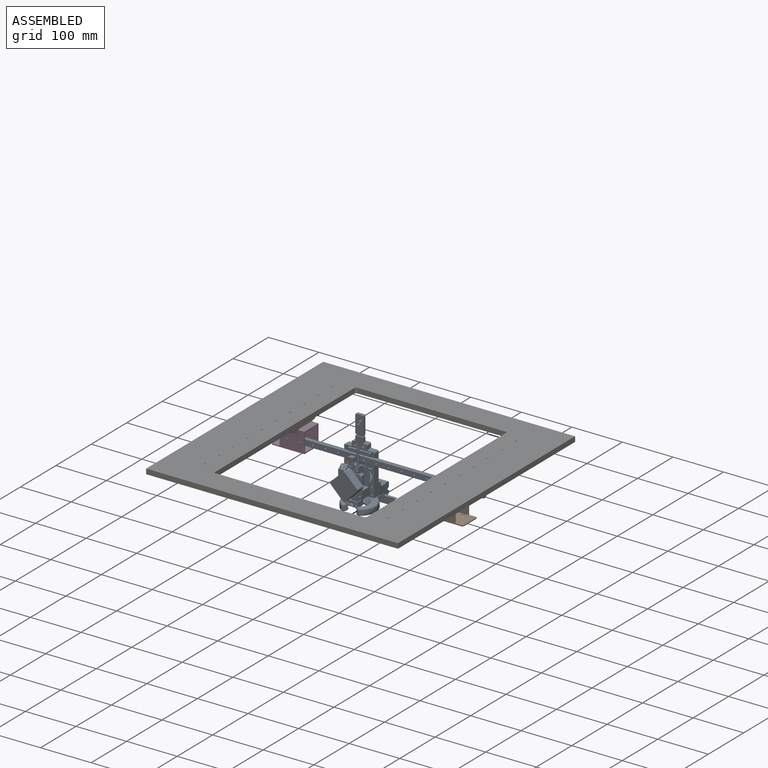
[diagram: assembled view]
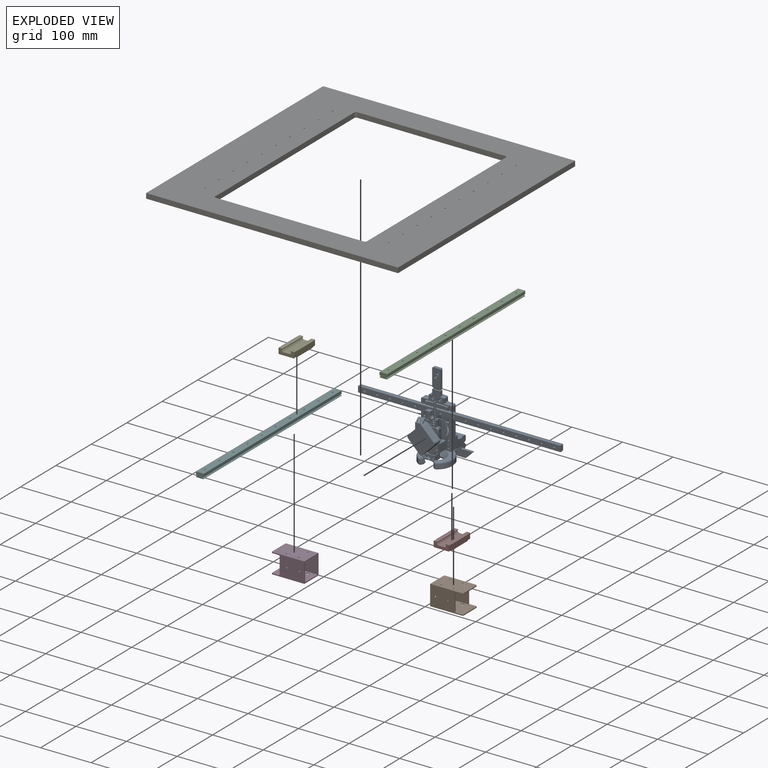
[diagram: exploded view]
GUIDED TOUR — MATED ASSEMBLY WITH SUBASSEMBLIES (Onshape document 4582f0631d4806b16300ab5d, AutoMate assembly 4582f0631d4806b16300ab5d_21cebfb99f55994230c3e05c_4cd21dc945d0d8148d6482c8_default)

This assembly has 25 component occurrences arranged in 8 top-level units: 7 individual components plus 1 subassembly (S0). The tour has two levels: first the top level, where each subassembly is treated as one rigid unit; then each subassembly is toured internally in its own section (nesting deeper than one subassembly level is flattened into its subassembly's section).

Components are labeled P0..P24 across the whole record; subassembly units are labeled S0..S0. A mate is a constraint between two units; its type names the relative motion it leaves free:
  FASTENED — locks the two components together rigidly (no relative motion),
  REVOLUTE — leaves rotation about the listed axis free (a hinge),
  SLIDER — leaves translation along the listed axis free.
Axis/direction vectors are unit vectors and 'through' points are millimeter coordinates, both in the assembly's world frame.

TOP-LEVEL MATES (between units; each subassembly's internal mates are listed in its own section)
  1. SLIDER "Slider 1": P17 <-> P15, axis (0.000, -1.000, 0.000) through (-225.67, -213.87, -5.04) mm
  2. SLIDER "Slider 2": P3 <-> P22, axis (0.000, -1.000, 0.000) through (137.33, -213.87, -5.04) mm
  3. FASTENED "Fastened 3": P15 <-> P4, direction (0.000, 0.000, -1.000) through (-238.17, 47.69, -11.54) mm
  4. FASTENED "Fastened 2": P20 <-> P3, direction (0.000, 0.000, -1.000) through (137.33, -198.87, 4.96) mm
  5. FASTENED "Fastened 5": P4 <-> S0, direction (0.000, 1.000, 0.000) through (-231.67, 42.19, -31.54) mm
  6. FASTENED "Fastened 4": P22 <-> P2, direction (0.000, 0.000, -1.000) through (149.83, -32.88, -11.54) mm
  7. FASTENED "Fastened 1": P20 <-> P17, direction (0.000, 0.000, -1.000) through (-225.67, -198.87, 4.96) mm

TOP-LEVEL ASSEMBLY ORDER
  1. P17 — the base component [order verified]
  2. P3 [order verified]
  3. S0 [order verified]
  4. P15 [order verified]
  5. P22 [order verified]
  6. P20 [order verified]
  7. P4 [order verified]
  8. P2 [order verified]
Order-tag legend:
  [order verified] — this step's position reverses a verified removal order: the component was checked to insert without passing through the ones already placed.

Of the 25 component occurrences, 1 carries the full construction recipe — the FeatureScript program that regenerates the part's solid from scratch; the rest are supplied as boundary geometry only. Each toured unit is shown spotlighted twice — assembled, then exploded with a leader line back to its socket (green = recipe-attached component, orange = geometry-only, blue = subassembly unit; the rest desaturated gray).
NOTE — this tour is split across 2 documents so each fits a 32k-token context. This is document 1: the component sections continue in the remaining 1 document, each repeating the header above.
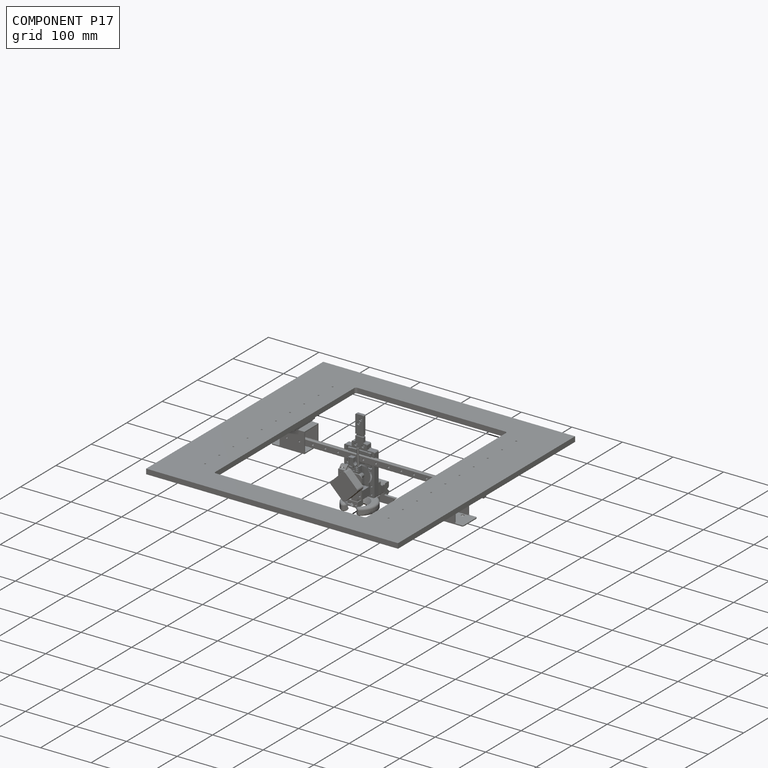
[diagram: component P17 — assembled]
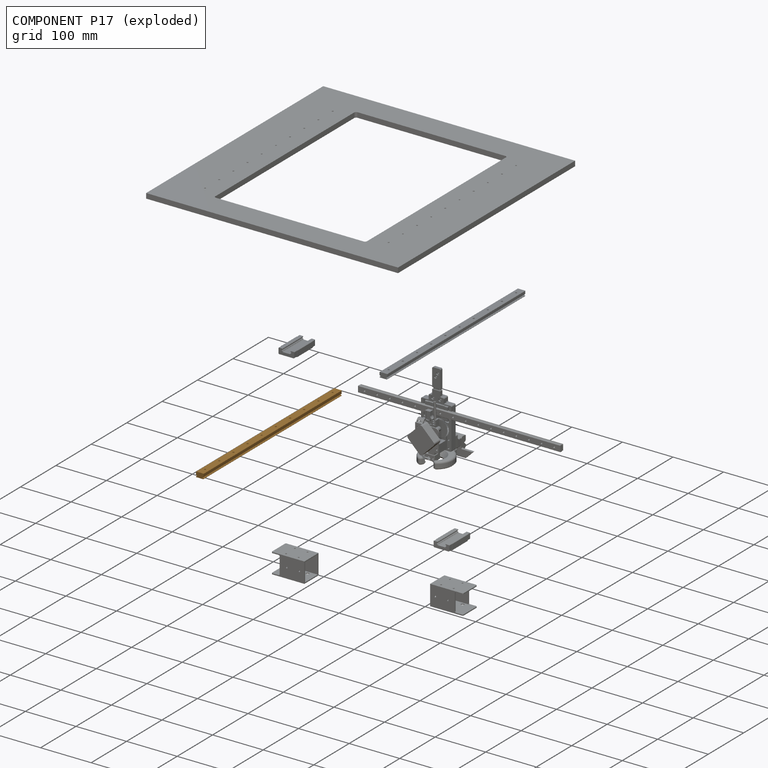
[diagram: component P17 — exploded]
COMPONENT P17 — geometry summary (no construction recipe available for this part):
  bounding box: 390.0 x 15.0 x 10.0 mm
  B-rep topology: 1 solid, 52 faces, 260 edges
  volume: 53658 mm^3 (92% of its bounding box)
  symmetry: 2-fold rotationally symmetric about the z axis; mirror-symmetric across its x mid-plane, y mid-plane
Held by: SLIDER mate "Slider 1" to P15; FASTENED mate "Fastened 1" to P20.
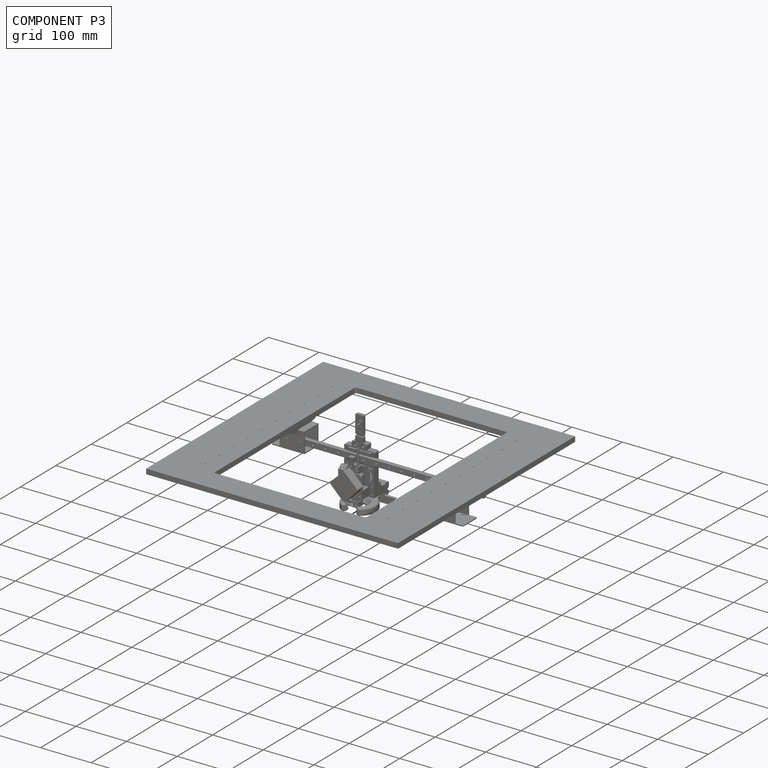
[diagram: component P3 — assembled]
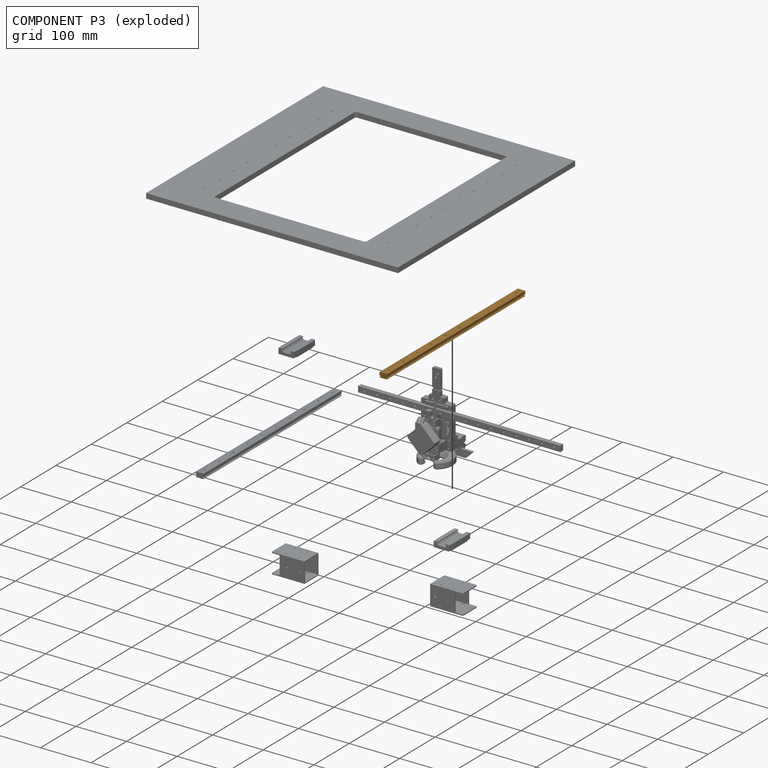
[diagram: component P3 — exploded]
COMPONENT P3 — geometry summary (no construction recipe available for this part):
  bounding box: 390.0 x 15.0 x 10.0 mm
  B-rep topology: 1 solid, 52 faces, 260 edges
  volume: 53658 mm^3 (92% of its bounding box)
  symmetry: 2-fold rotationally symmetric about the z axis; mirror-symmetric across its x mid-plane, y mid-plane
Held by: SLIDER mate "Slider 2" to P22; FASTENED mate "Fastened 2" to P20.
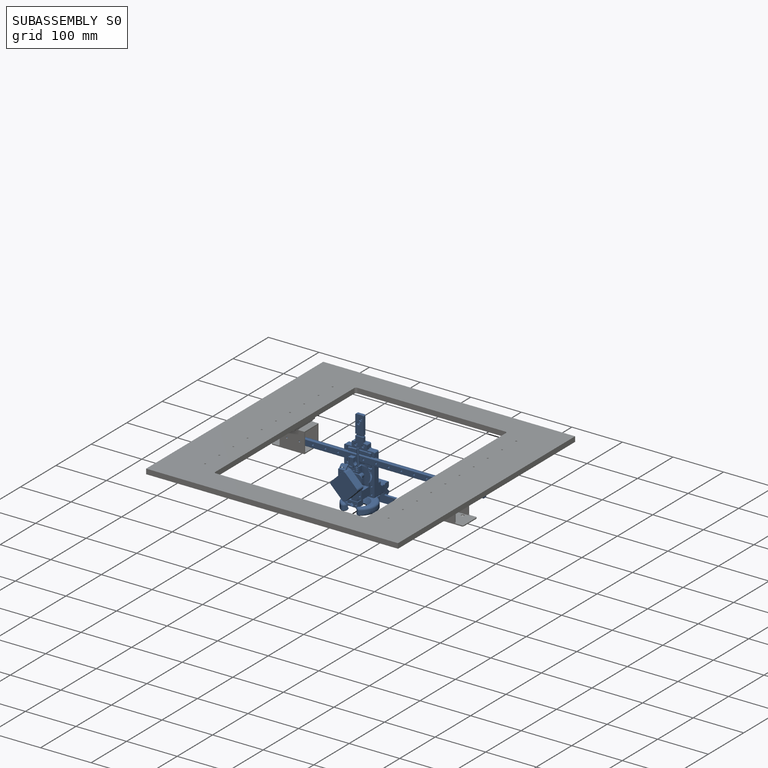
[diagram: subassembly S0 — assembled]
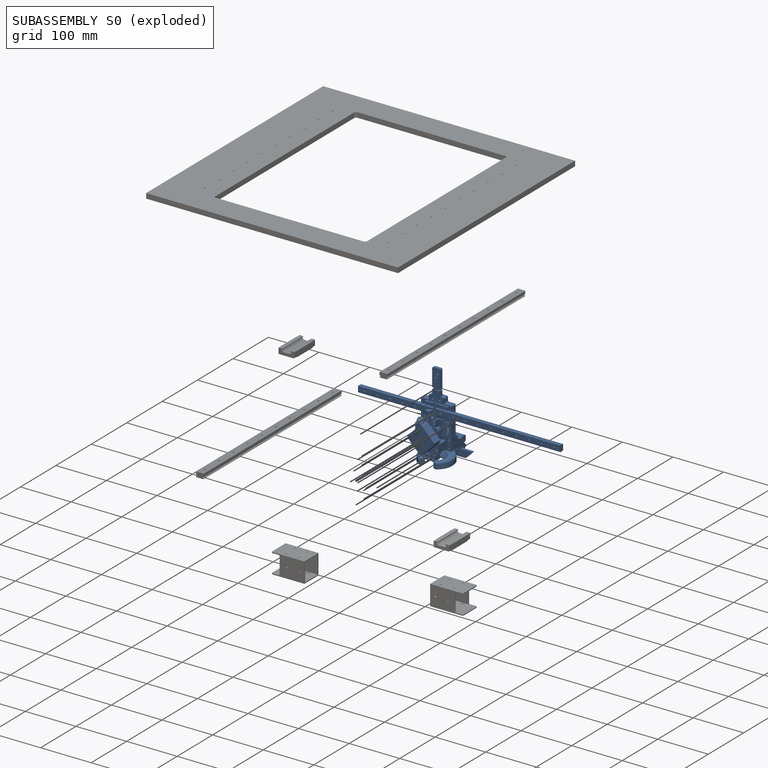
[diagram: subassembly S0 — exploded]
SUBASSEMBLY S0 — 18 components (P0, P1, P5, P6, P7, P8, P9, P10, P11, P12, P13, P14, P16, P18, P19, P21, P23, P24), of which 1 recipe-attached; toured below.
Held by: FASTENED mate "Fastened 5" to P4.
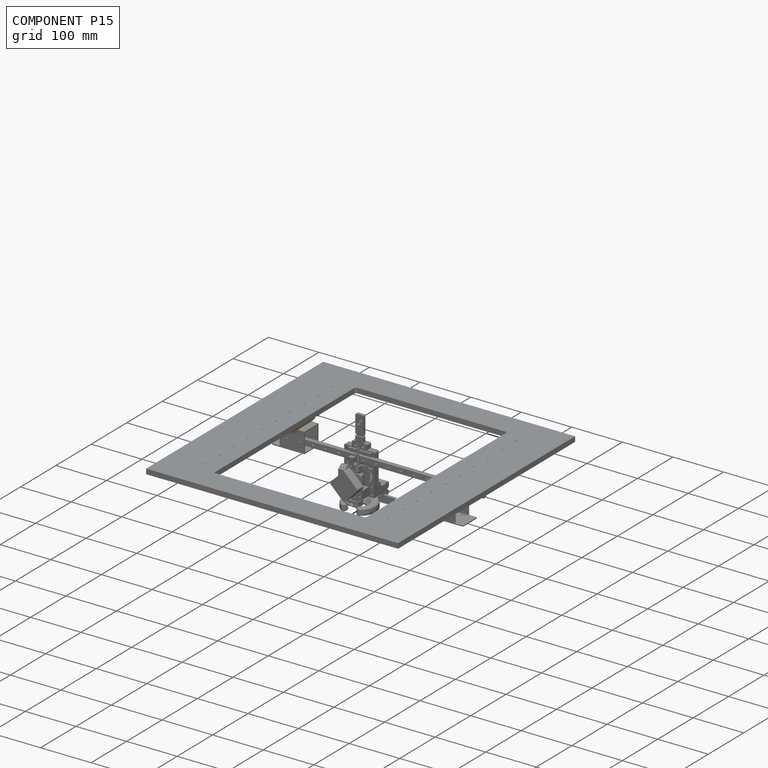
[diagram: component P15 — assembled]
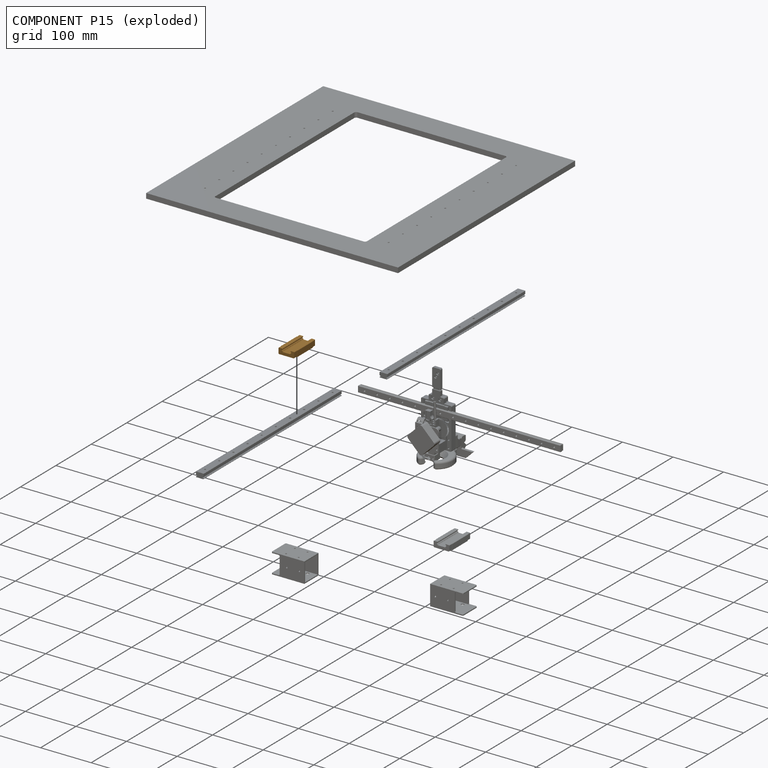
[diagram: component P15 — exploded]
COMPONENT P15 — geometry summary (no construction recipe available for this part):
  bounding box: 58.8 x 32.0 x 12.0 mm
  B-rep topology: 1 solid, 50 faces, 272 edges
  volume: 15748 mm^3 (70% of its bounding box)
  symmetry: 2-fold rotationally symmetric about the z axis; mirror-symmetric across its x mid-plane, y mid-plane
Held by: SLIDER mate "Slider 1" to P17; FASTENED mate "Fastened 3" to P4.
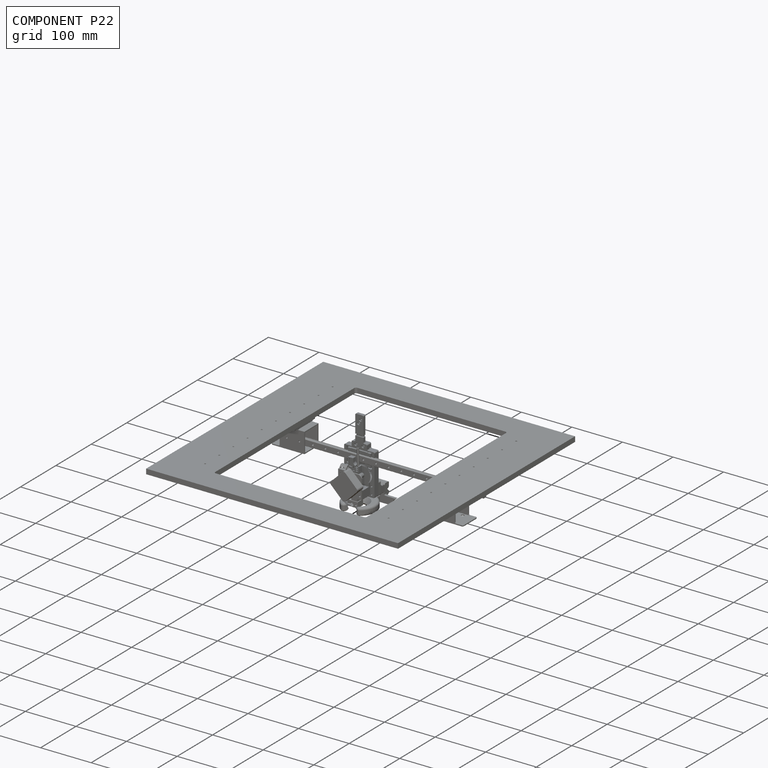
[diagram: component P22 — assembled]
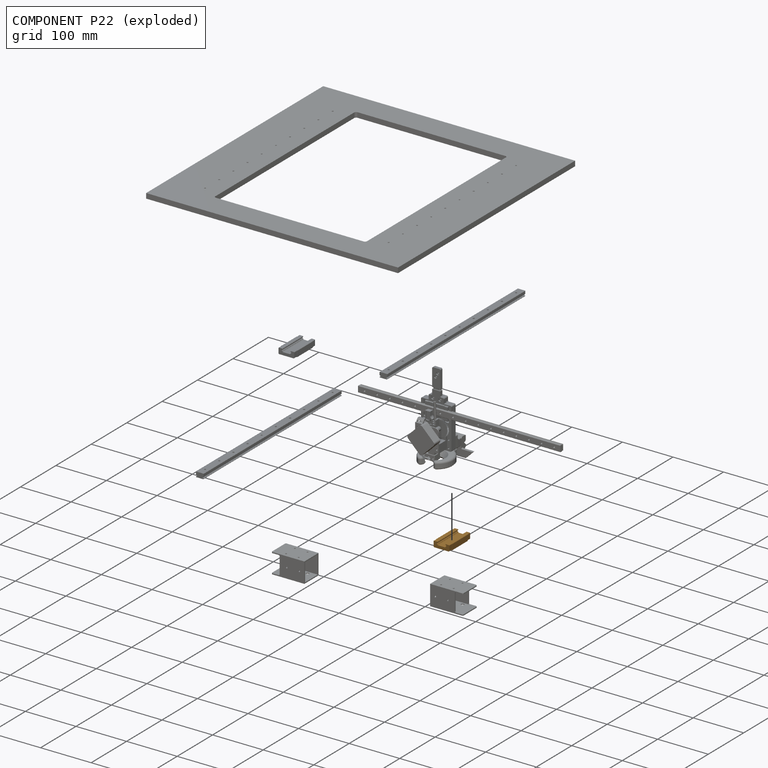
[diagram: component P22 — exploded]
COMPONENT P22 — geometry summary (no construction recipe available for this part):
  bounding box: 58.8 x 32.0 x 12.0 mm
  B-rep topology: 1 solid, 50 faces, 272 edges
  volume: 15748 mm^3 (70% of its bounding box)
  symmetry: 2-fold rotationally symmetric about the z axis; mirror-symmetric across its x mid-plane, y mid-plane
Held by: SLIDER mate "Slider 2" to P3; FASTENED mate "Fastened 4" to P2.
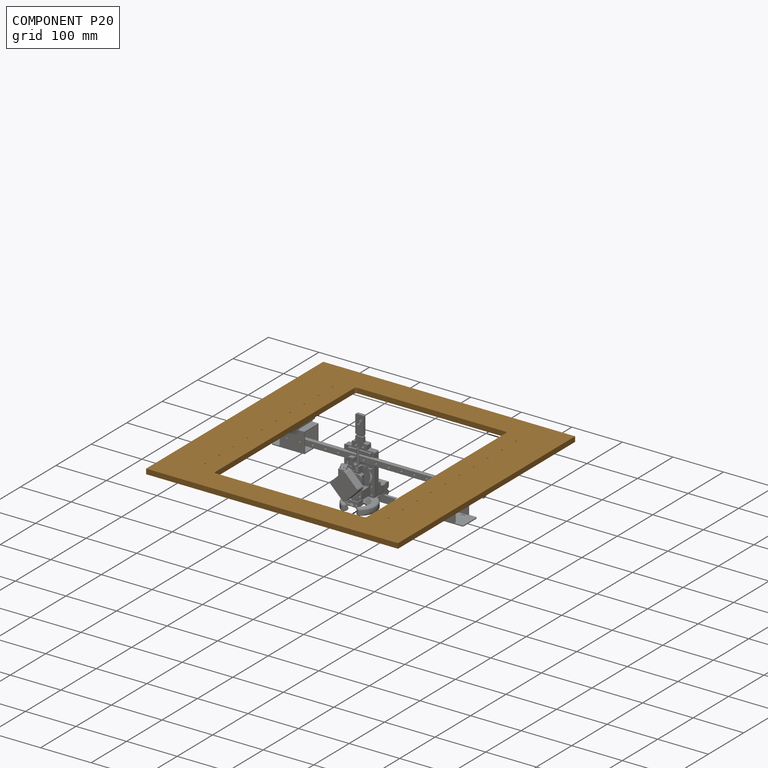
[diagram: component P20 — assembled]
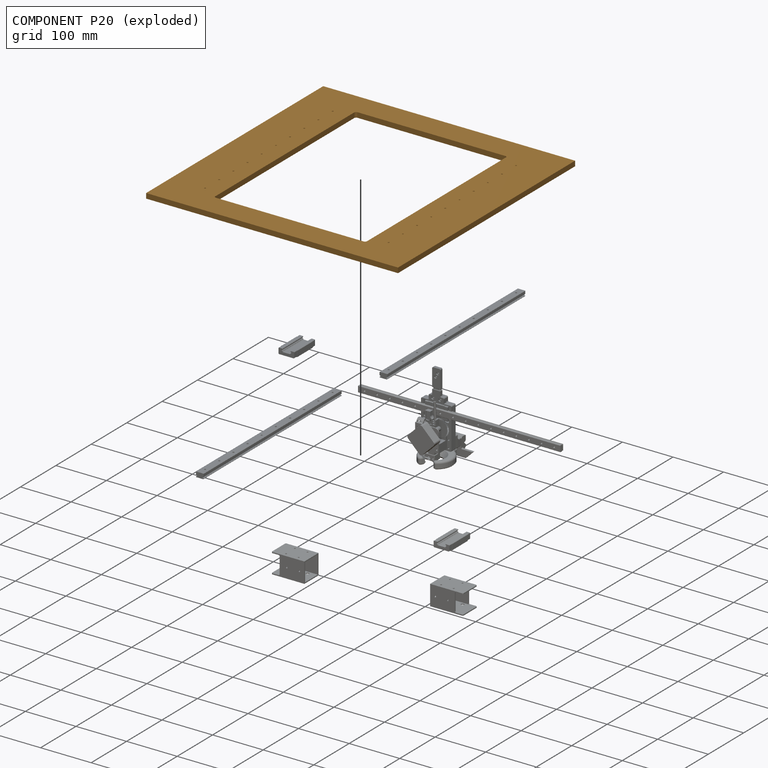
[diagram: component P20 — exploded]
COMPONENT P20 — geometry summary (no construction recipe available for this part):
  bounding box: 500.0 x 498.0 x 10.0 mm
  B-rep topology: 1 solid, 34 faces, 232 edges
  volume: 1288724 mm^3 (52% of its bounding box)
  symmetry: 2-fold rotationally symmetric about the x axis; 2-fold rotationally symmetric about the y axis; 2-fold rotationally symmetric about the z axis; mirror-symmetric across its x mid-plane, y mid-plane, z mid-plane
Held by: FASTENED mate "Fastened 2" to P3; FASTENED mate "Fastened 1" to P17.
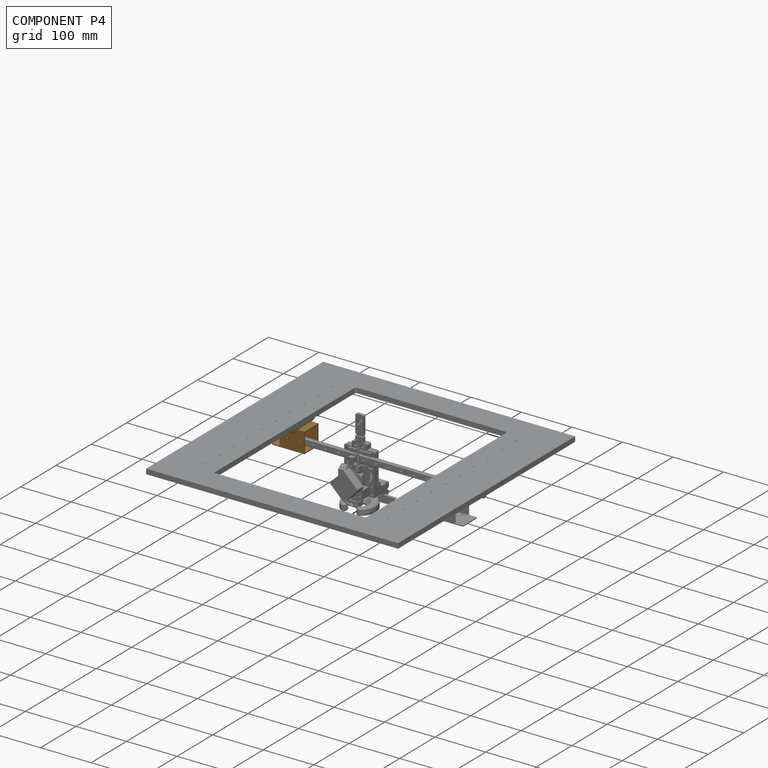
[diagram: component P4 — assembled]
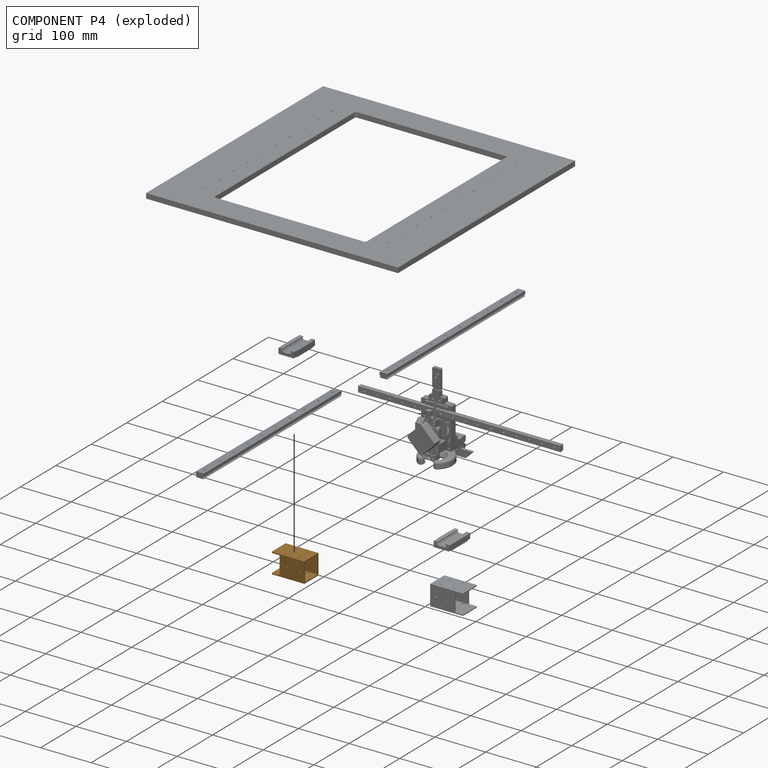
[diagram: component P4 — exploded]
COMPONENT P4 — geometry summary (no construction recipe available for this part):
  bounding box: 65.0 x 40.0 x 40.0 mm
  B-rep topology: 1 solid, 32 faces, 190 edges
  volume: 17088 mm^3 (16% of its bounding box)
Held by: FASTENED mate "Fastened 3" to P15; FASTENED mate "Fastened 5" to P0.
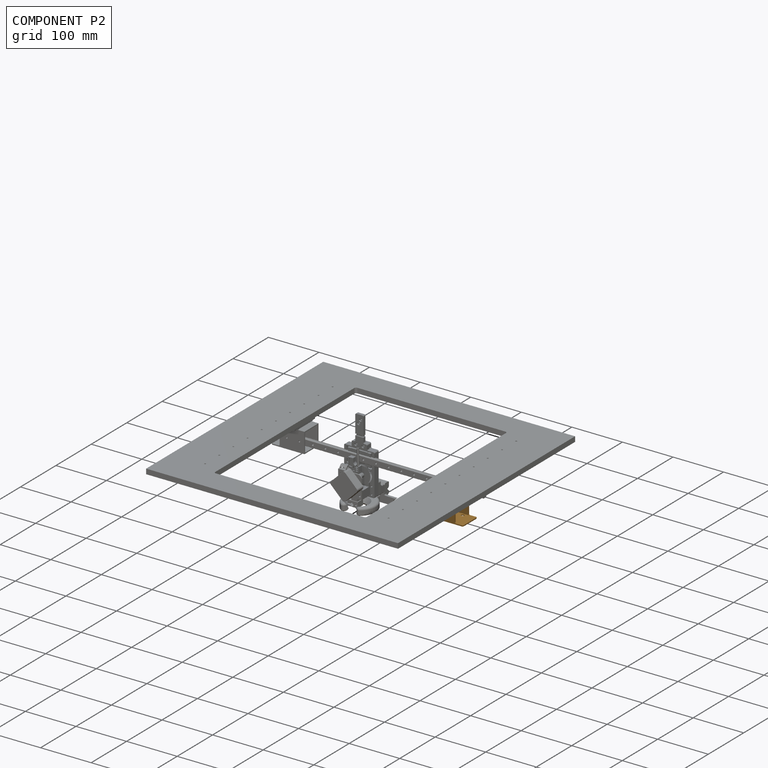
[diagram: component P2 — assembled]
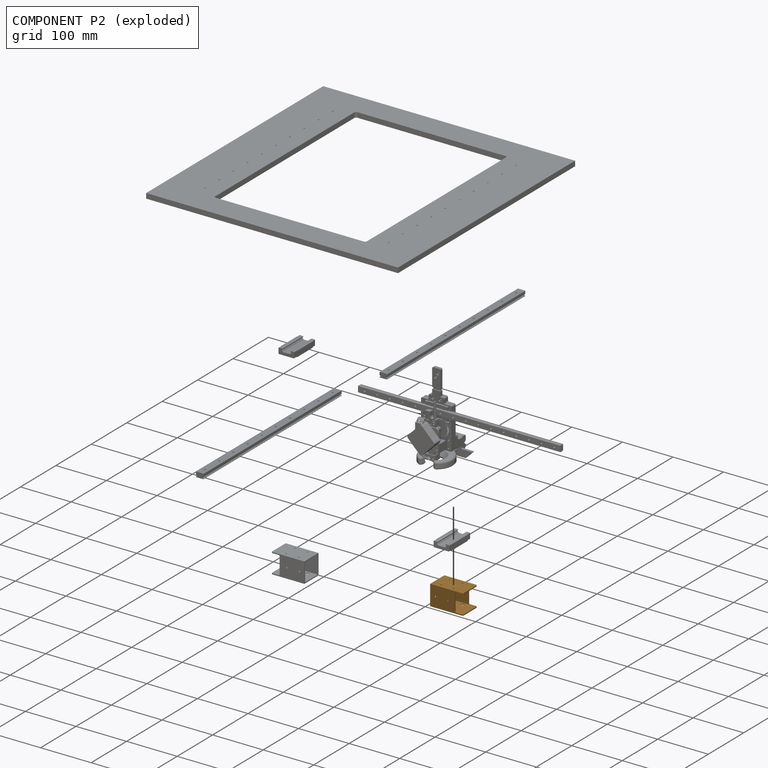
[diagram: component P2 — exploded]
COMPONENT P2 — geometry summary (no construction recipe available for this part):
  bounding box: 65.0 x 40.0 x 40.0 mm
  B-rep topology: 1 solid, 32 faces, 190 edges
  volume: 17088 mm^3 (16% of its bounding box)
Held by: FASTENED mate "Fastened 4" to P22.
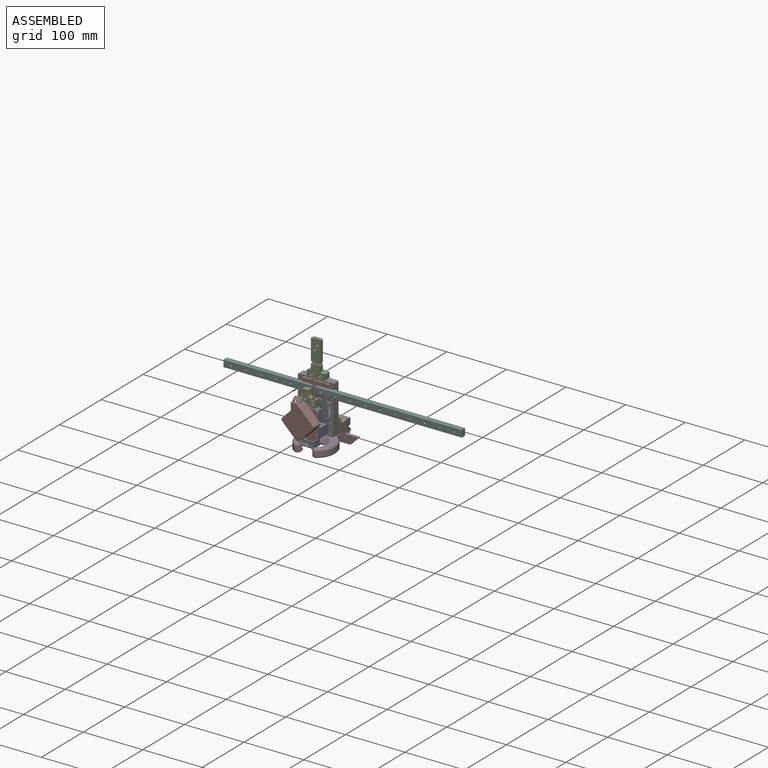
[diagram: subassembly S0 — assembled view]
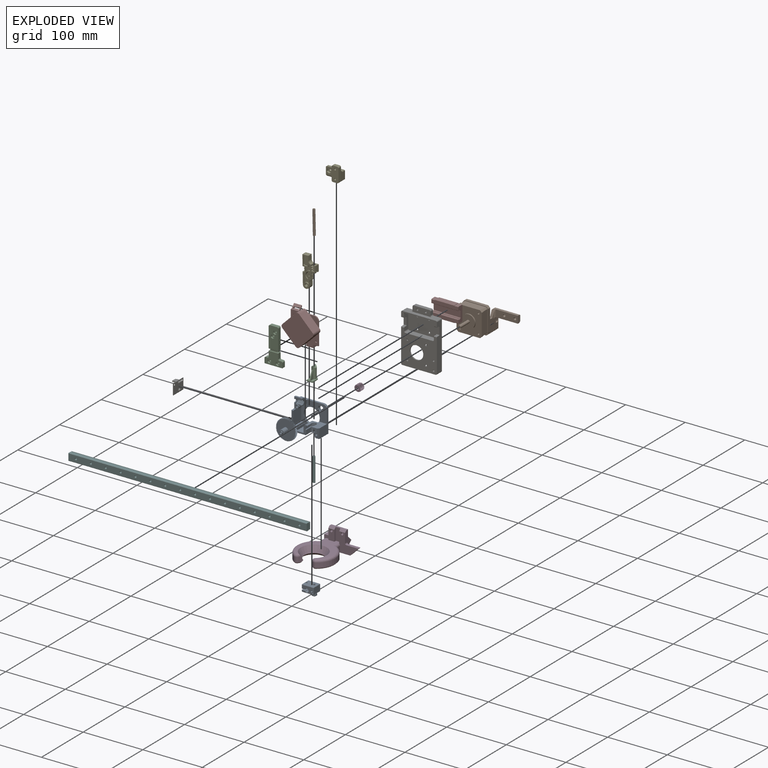
[diagram: subassembly S0 — exploded view]
SUBASSEMBLY S0 TOUR — 18 components, shown here in isolation at its own camera.

INTERNAL MATES
  1. FASTENED "Fastened 7": P11 <-> P10, direction (0.000, -1.000, 0.000) through (-114.31, 22.94, -90.50) mm
  2. FASTENED "Fastened 3": P11 <-> P14, direction (0.000, 1.000, 0.000) through (-95.70, 45.19, -71.54) mm
  3. FASTENED "Fastened 15": P24 <-> P9, direction (-1.000, 0.000, 0.000) through (-105.70, 68.58, -101.04) mm
  4. FASTENED "Fastened 2": P11 <-> P23, direction (0.000, -1.000, 0.000) through (-80.18, 41.09, -56.20) mm
  5. FASTENED "Fastened 1": P21 <-> P19, direction (0.000, 1.000, 0.000) through (-101.70, 55.19, -21.54) mm
  6. FASTENED "Fastened 12": P19 <-> P16, direction (0.000, 1.000, 0.000) through (-67.45, 57.19, -76.54) mm
  7. REVOLUTE "Revolute 1": P10 <-> P0, axis (0.000, 0.000, -1.000) through (-84.66, 31.94, -97.65) mm
  8. FASTENED "Fastened 4": P14 <-> P7, direction (0.000, -1.000, 0.000) through (-95.70, 36.19, -71.54) mm
  9. FASTENED "Fastened 11": P19 <-> P5, direction (0.000, -1.000, 0.000) through (-98.70, 51.19, -9.54) mm
  10. FASTENED "Fastened 9": P1 <-> P19, direction (0.000, -1.000, 0.000) through (-95.70, 47.19, -71.54) mm
  11. FASTENED "Fastened 5": P12 <-> P7, direction (0.018, 0.000, -1.000) through (-84.72, 32.17, -47.74) mm
  12. SLIDER "Slider 1": P8 <-> P21, axis (1.000, 0.000, 0.000) through (155.83, 50.19, -31.54) mm
  13. FASTENED "Fastened 6": P13 <-> P11, direction (0.000, 0.000, 1.000) through (-84.61, 31.29, -78.03) mm
  14. FASTENED "Fastened 13": P16 <-> P6, direction (0.000, 1.000, 0.000) through (-85.20, 73.69, -87.04) mm
  15. FASTENED "Fastened 14": P6 <-> P24, direction (0.000, 1.000, 0.000) through (-85.20, 80.69, -87.04) mm
  16. FASTENED "Fastened 10": P1 <-> P11, direction (0.000, -1.000, 0.000) through (-95.70, 45.19, -71.54) mm
  17. FASTENED "Fastened 8": P13 <-> P18, direction (0.000, 0.000, -1.000) through (-84.71, 31.29, -63.33) mm
  18. FASTENED "Fastened 12": P19 <-> P16, direction (0.000, 1.000, 0.000) through (-67.45, 57.19, -76.54) mm
  19. FASTENED "Fastened 14": P6 <-> P24, direction (0.000, 1.000, 0.000) through (-85.20, 80.69, -87.04) mm
  20. FASTENED "Fastened 15": P24 <-> P9, direction (-1.000, 0.000, 0.000) through (-105.70, 68.58, -101.04) mm
  21. FASTENED "Fastened 6": P13 <-> P11, direction (0.000, 0.000, 1.000) through (-84.61, 31.29, -78.03) mm
  22. FASTENED "Fastened 8": P13 <-> P18, direction (0.000, 0.000, -1.000) through (-84.71, 31.29, -63.33) mm
  23. FASTENED "Fastened 7": P11 <-> P10, direction (0.000, -1.000, 0.000) through (-114.31, 22.94, -90.50) mm
  24. FASTENED "Fastened 3": P11 <-> P14, direction (0.000, 1.000, 0.000) through (-95.70, 45.19, -71.54) mm
  25. FASTENED "Fastened 10": P1 <-> P11, direction (0.000, -1.000, 0.000) through (-95.70, 45.19, -71.54) mm
  26. FASTENED "Fastened 4": P14 <-> P7, direction (0.000, -1.000, 0.000) through (-95.70, 36.19, -71.54) mm
  27. FASTENED "Fastened 13": P16 <-> P6, direction (0.000, 1.000, 0.000) through (-85.20, 73.69, -87.04) mm
  28. FASTENED "Fastened 1": P21 <-> P19, direction (0.000, 1.000, 0.000) through (-101.70, 55.19, -21.54) mm
  29. FASTENED "Fastened 5": P12 <-> P7, direction (0.018, 0.000, -1.000) through (-84.72, 32.17, -47.74) mm
  30. SLIDER "Slider 1": P8 <-> P21, axis (1.000, 0.000, 0.000) through (155.83, 50.19, -31.54) mm
  31. FASTENED "Fastened 11": P19 <-> P5, direction (0.000, -1.000, 0.000) through (-98.70, 51.19, -9.54) mm
  32. FASTENED "Fastened 2": P11 <-> P23, direction (0.000, -1.000, 0.000) through (-80.18, 41.09, -56.20) mm
  33. FASTENED "Fastened 9": P1 <-> P19, direction (0.000, -1.000, 0.000) through (-95.70, 47.19, -71.54) mm
  34. REVOLUTE "Revolute 1": P10 <-> P0, axis (0.000, 0.000, -1.000) through (-84.66, 31.94, -97.65) mm

ASSEMBLY ORDER (within the subassembly)
  1. P11 — the base component [order heuristic]
  2. P1 — core [order heuristic]
  3. P13 [order verified]
  4. P14 — core [order heuristic]
  5. P23 — core [order heuristic]
  6. P10 — core [order heuristic]
  7. P19 — core [order heuristic]
  8. P21 — core [order heuristic]
  9. P18 — core [order heuristic]
  10. P8 [order verified]
  11. P7 [order verified]
  12. P0 [order verified]
  13. P12 [order verified]
  14. P6 [order verified]
  15. P24 [order verified]
  16. P9 [order verified]
  17. P16 [order verified]
  18. P5 [order verified]
(P12, P13 verified with a relaxed clearance tolerance: the source model stores slight part interference there.)
Order-tag legend:
  [order verified] — this step's position reverses a verified removal order: the component was checked to insert without passing through the ones already placed.
  [order heuristic] — the first 8 components form the assembly's core: parts whose collision-free extraction could not be verified, listed in mate-graph order.
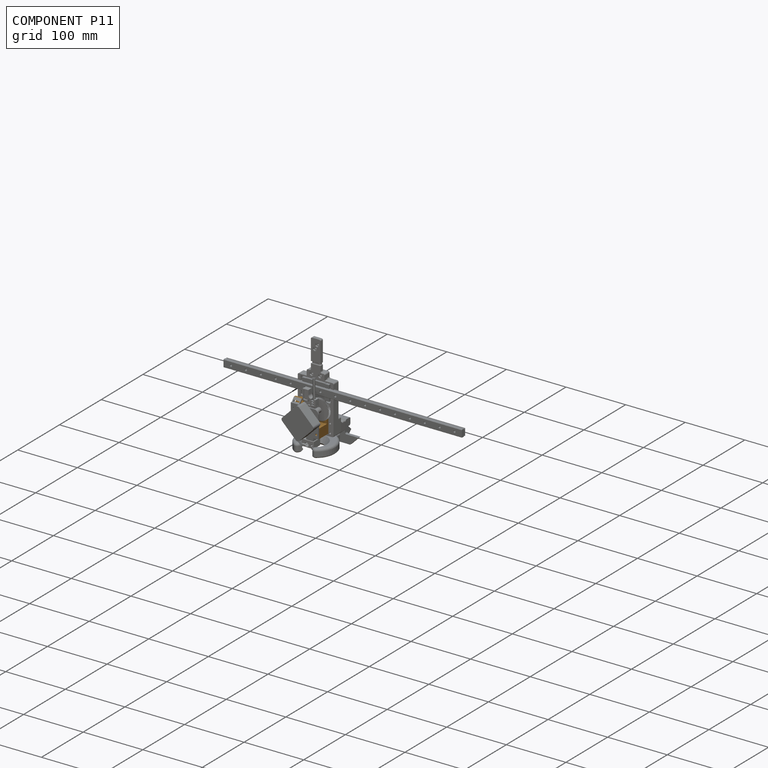
[diagram: component P11 — assembled]
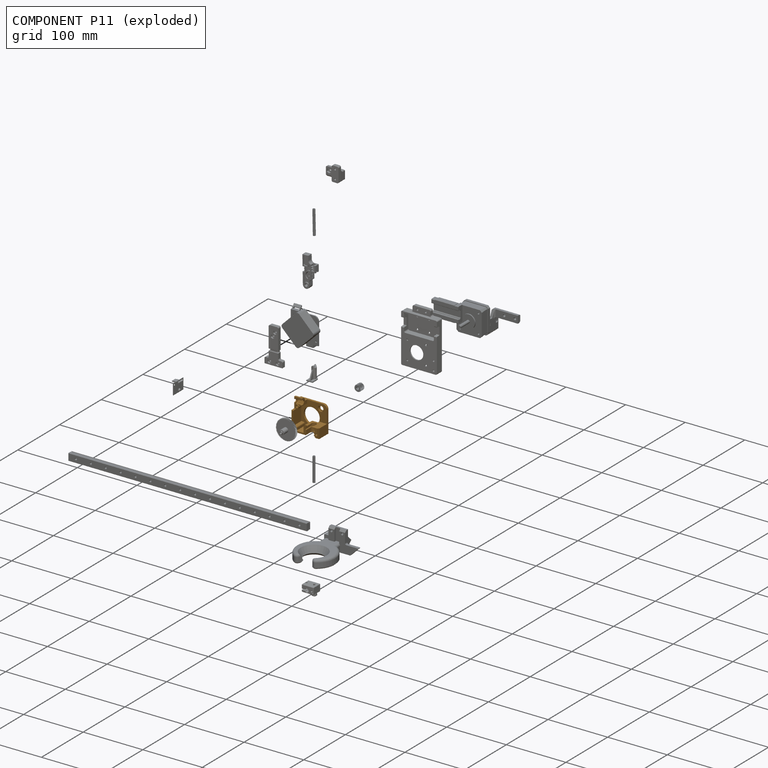
[diagram: component P11 — exploded]
COMPONENT P11 — geometry summary (no construction recipe available for this part):
  bounding box: 50.1 x 46.3 x 23.8 mm
  B-rep topology: 1 solid, 91 faces, 533 edges
  volume: 13798 mm^3 (25% of its bounding box)
Held by: FASTENED mate "Fastened 7" to P10; FASTENED mate "Fastened 3" to P14; FASTENED mate "Fastened 2" to P23; FASTENED mate "Fastened 6" to P13; FASTENED mate "Fastened 10" to P1; FASTENED mate "Fastened 6" to P13; FASTENED mate "Fastened 7" to P10; FASTENED mate "Fastened 3" to P14; FASTENED mate "Fastened 10" to P1; FASTENED mate "Fastened 2" to P23.
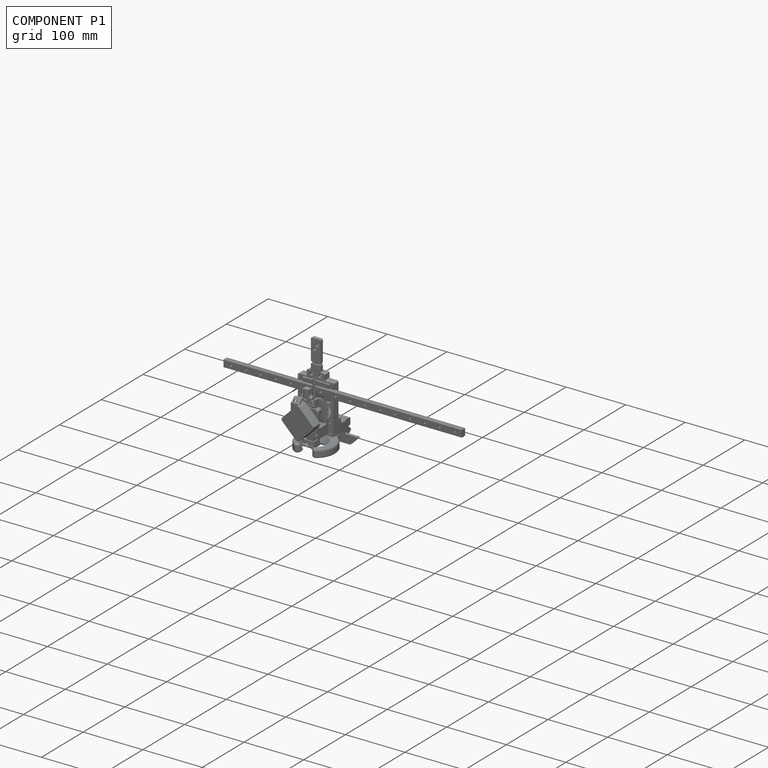
[diagram: component P1 — assembled]
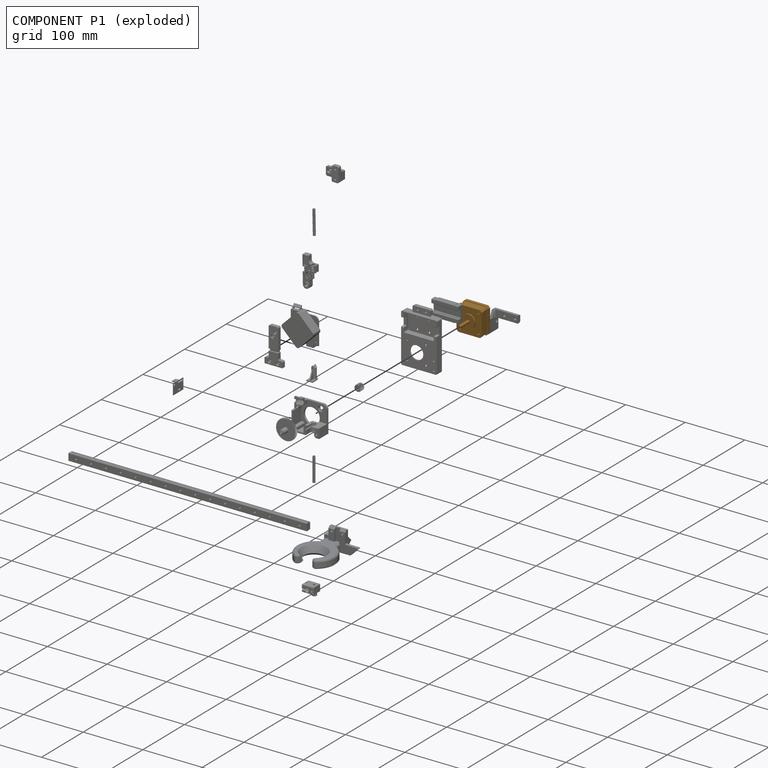
[diagram: component P1 — exploded]
COMPONENT P1 — geometry summary (no construction recipe available for this part):
  bounding box: 44.0 x 42.3 x 42.3 mm
  B-rep topology: 1 solid, 36 faces, 182 edges
  volume: 34464 mm^3 (44% of its bounding box)
  symmetry: 4-fold rotationally symmetric about the y axis; mirror-symmetric across its x mid-plane, z mid-plane
Held by: FASTENED mate "Fastened 9" to P19; FASTENED mate "Fastened 10" to P11; FASTENED mate "Fastened 10" to P11; FASTENED mate "Fastened 9" to P19.
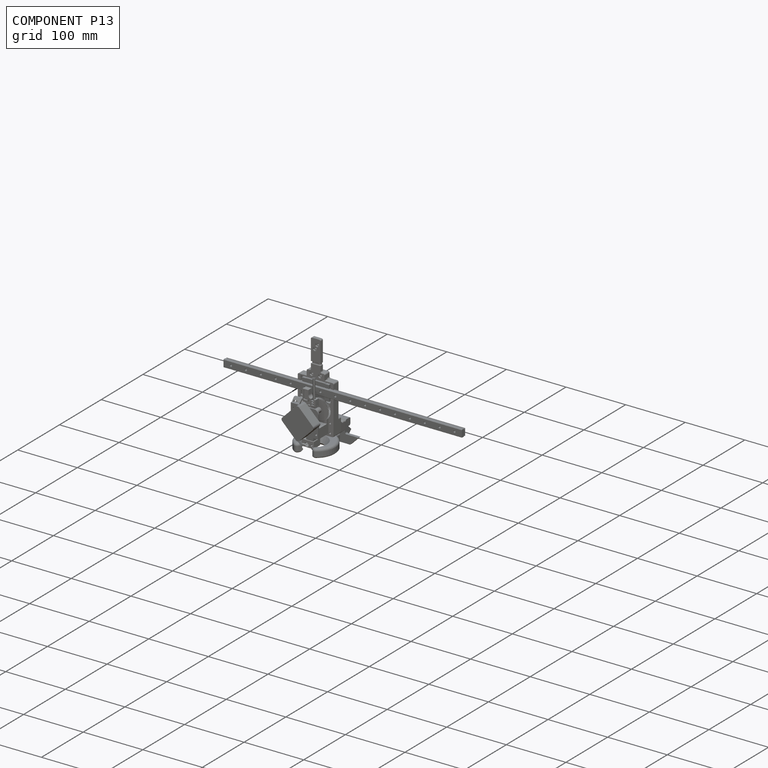
[diagram: component P13 — assembled]
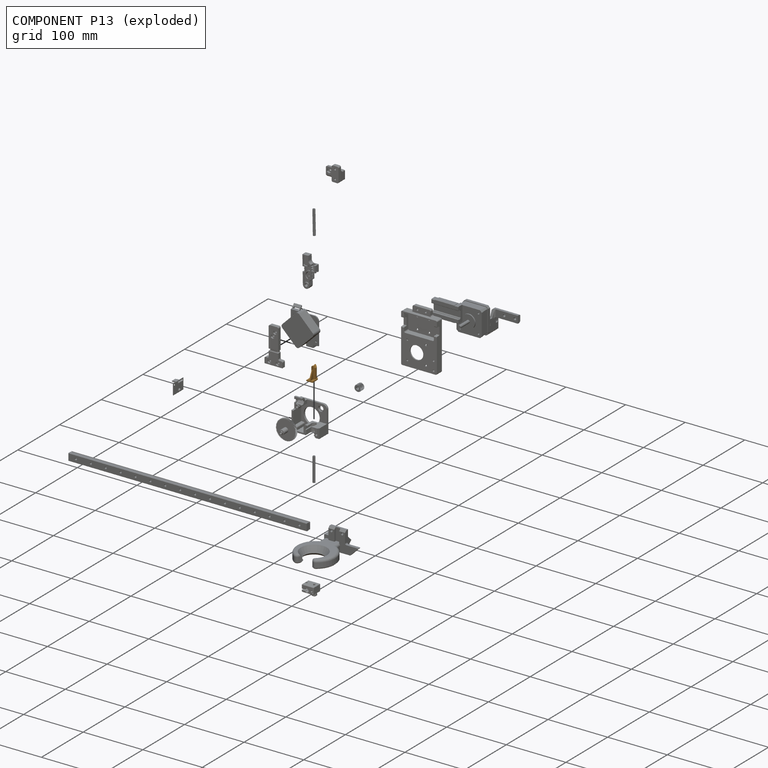
[diagram: component P13 — exploded]
COMPONENT P13 — geometry summary (no construction recipe available for this part):
  bounding box: 21.9 x 16.1 x 10.6 mm
  B-rep topology: 1 solid, 22 faces, 114 edges
  volume: 843 mm^3 (23% of its bounding box)
Held by: FASTENED mate "Fastened 6" to P11; FASTENED mate "Fastened 8" to P18; FASTENED mate "Fastened 6" to P11; FASTENED mate "Fastened 8" to P18.
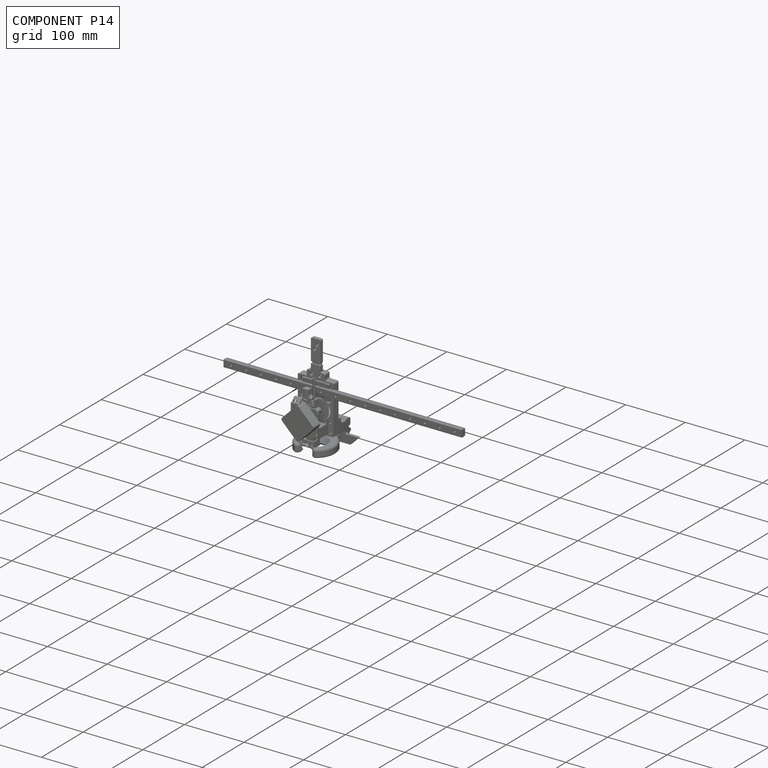
[diagram: component P14 — assembled]
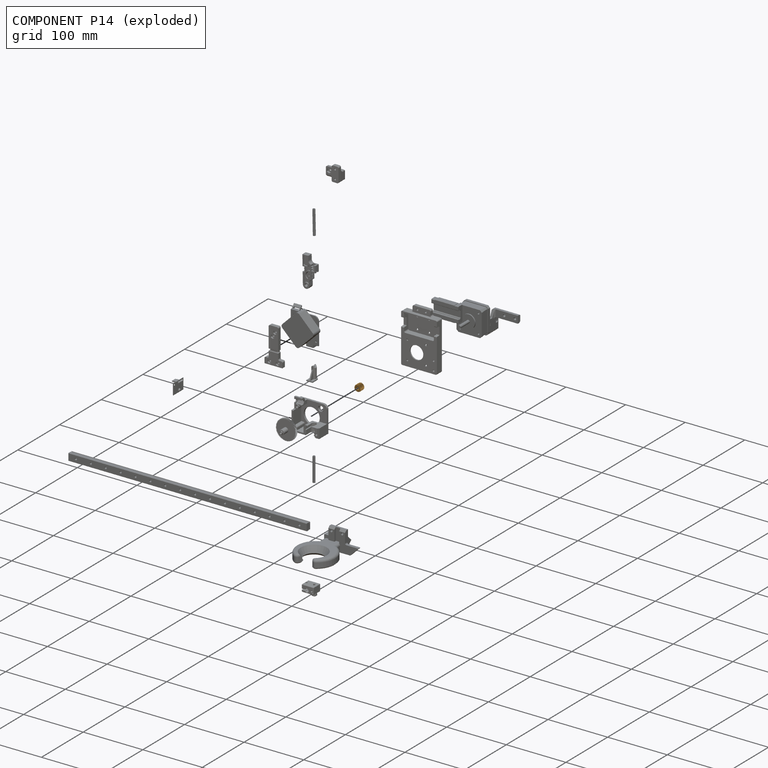
[diagram: component P14 — exploded]
COMPONENT P14 — geometry summary (no construction recipe available for this part):
  bounding box: 11.1 x 11.0 x 9.0 mm
  B-rep topology: 1 solid, 47 faces, 270 edges
  volume: 523 mm^3 (48% of its bounding box)
  symmetry: 2-fold rotationally symmetric about the y axis; mirror-symmetric across its y mid-plane
Held by: FASTENED mate "Fastened 3" to P11; FASTENED mate "Fastened 4" to P7; FASTENED mate "Fastened 3" to P11; FASTENED mate "Fastened 4" to P7.
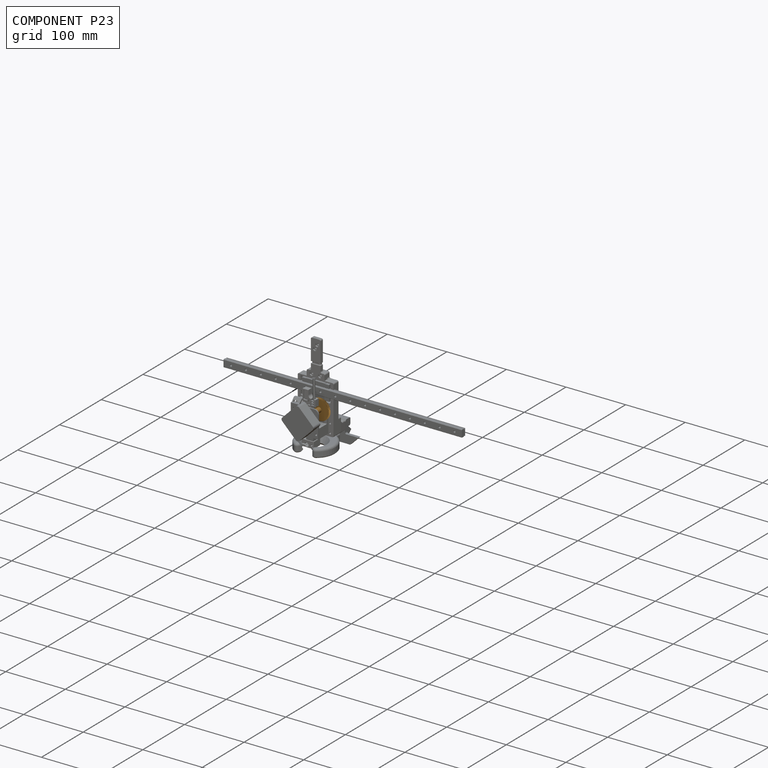
[diagram: component P23 — assembled]
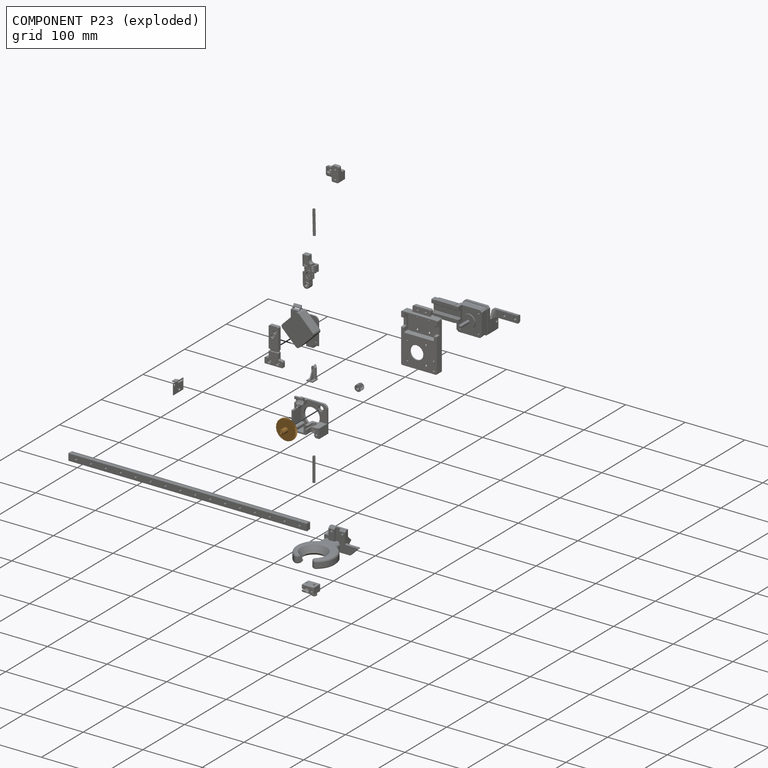
[diagram: component P23 — exploded]
COMPONENT P23 — geometry summary (no construction recipe available for this part):
  bounding box: 34.0 x 34.0 x 20.2 mm
  B-rep topology: 1 solid, 155 faces, 860 edges
  volume: 3832 mm^3 (16% of its bounding box)
  symmetry: 6-fold rotationally symmetric about the y axis
Held by: FASTENED mate "Fastened 2" to P11; FASTENED mate "Fastened 2" to P11.
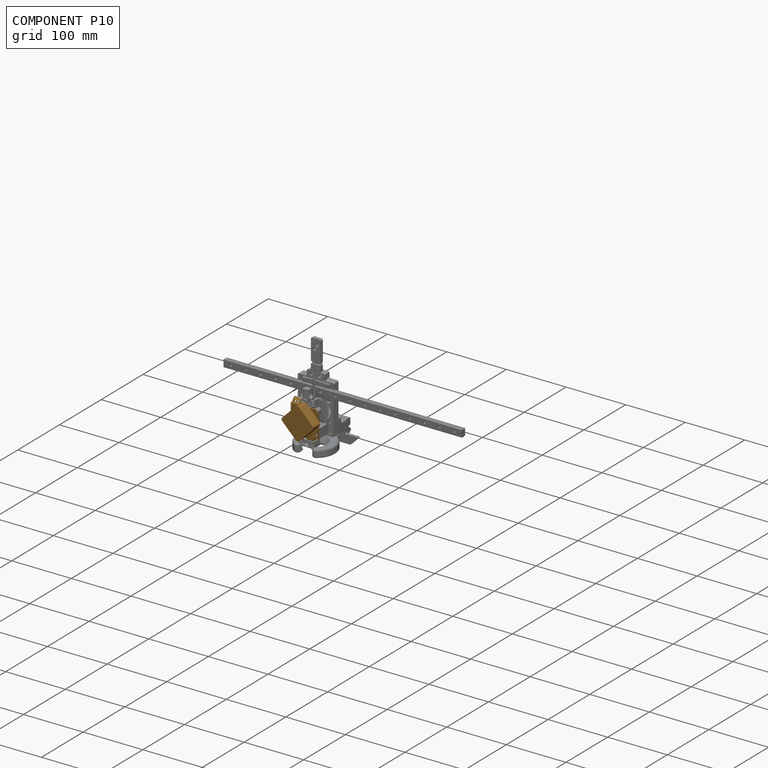
[diagram: component P10 — assembled]
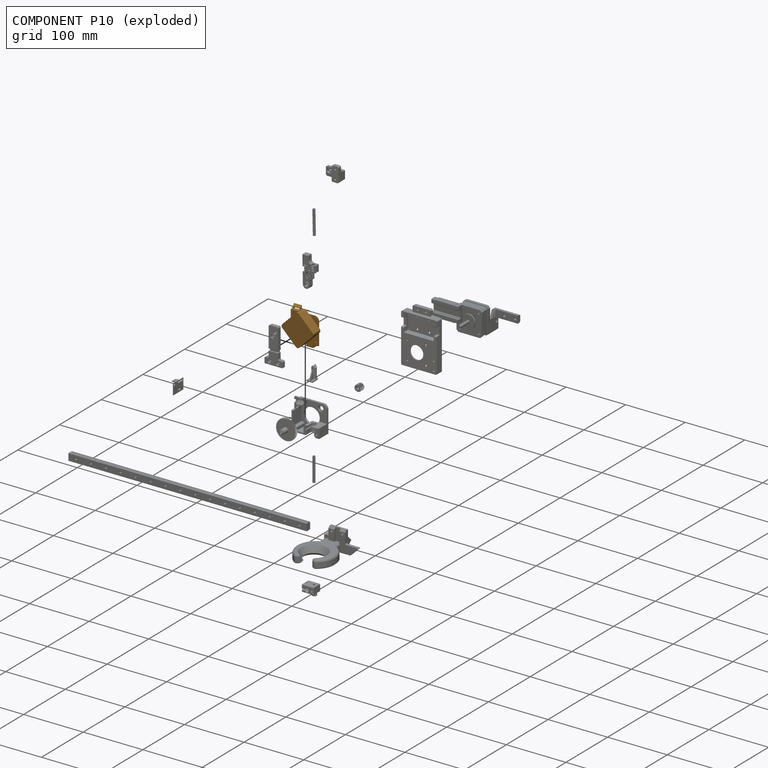
[diagram: component P10 — exploded]
COMPONENT P10 — geometry summary (no construction recipe available for this part):
  bounding box: 55.9 x 53.3 x 34.0 mm
  B-rep topology: 1 solid, 66 faces, 354 edges
  volume: 34390 mm^3 (34% of its bounding box)
Held by: FASTENED mate "Fastened 7" to P11; REVOLUTE mate "Revolute 1" to P0; FASTENED mate "Fastened 7" to P11; REVOLUTE mate "Revolute 1" to P0.
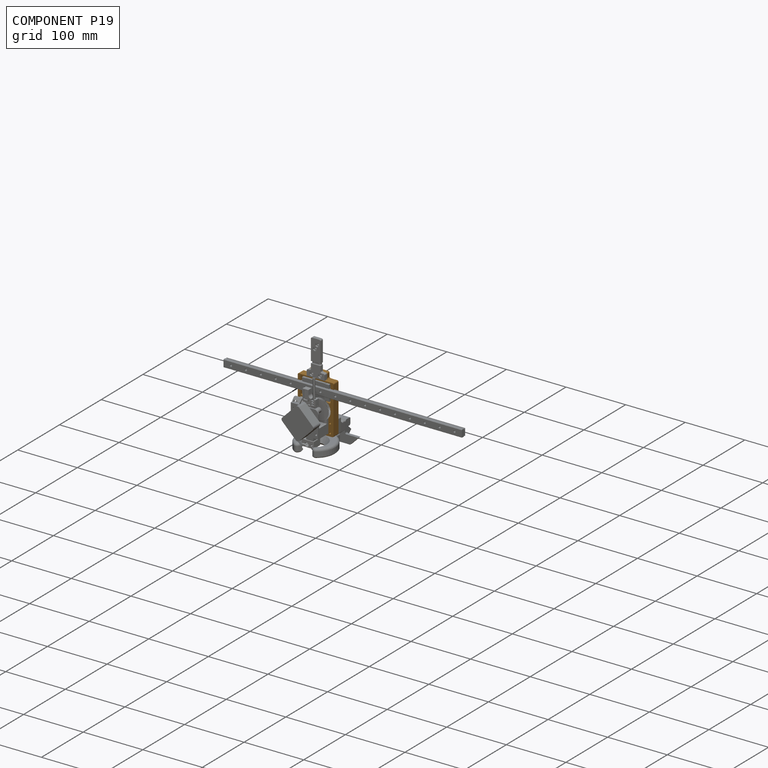
[diagram: component P19 — assembled]
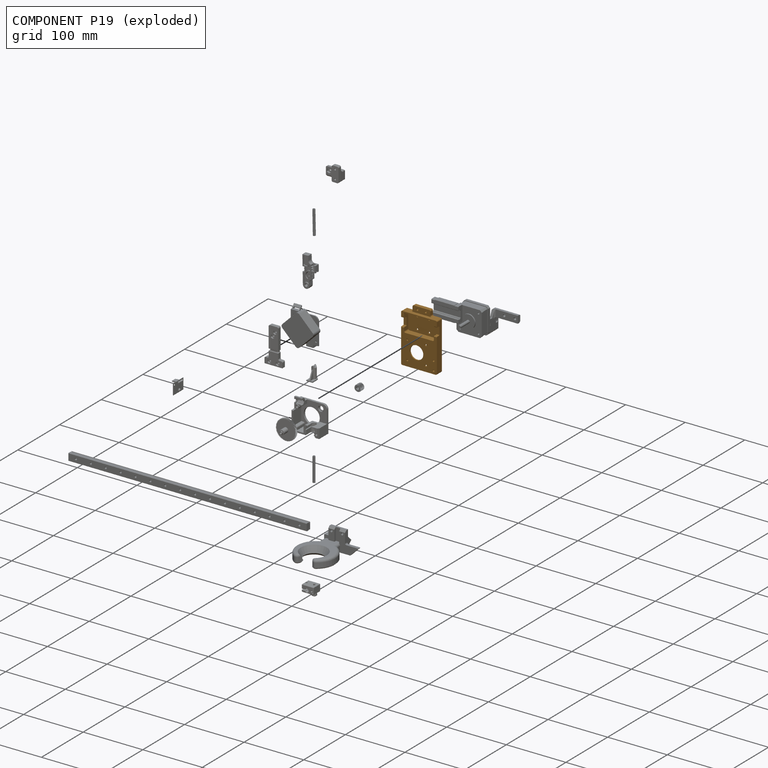
[diagram: component P19 — exploded]
COMPONENT P19 — geometry summary (no construction recipe available for this part):
  bounding box: 92.0 x 60.0 x 12.0 mm
  B-rep topology: 1 solid, 64 faces, 380 edges
  volume: 23604 mm^3 (36% of its bounding box)
Held by: FASTENED mate "Fastened 1" to P21; FASTENED mate "Fastened 12" to P16; FASTENED mate "Fastened 11" to P5; FASTENED mate "Fastened 9" to P1; FASTENED mate "Fastened 12" to P16; FASTENED mate "Fastened 1" to P21; FASTENED mate "Fastened 11" to P5; FASTENED mate "Fastened 9" to P1.
